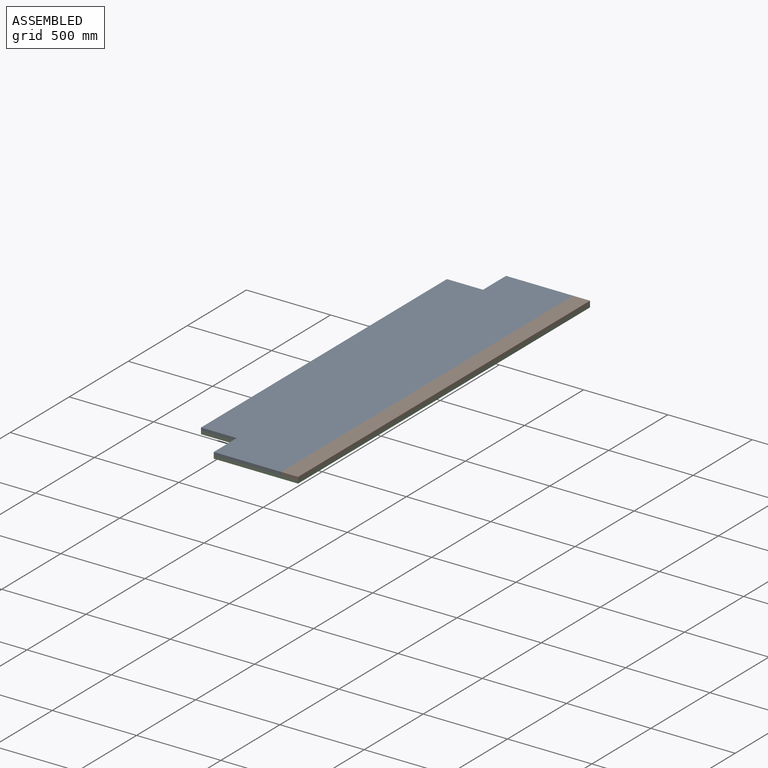
[diagram: assembled view]
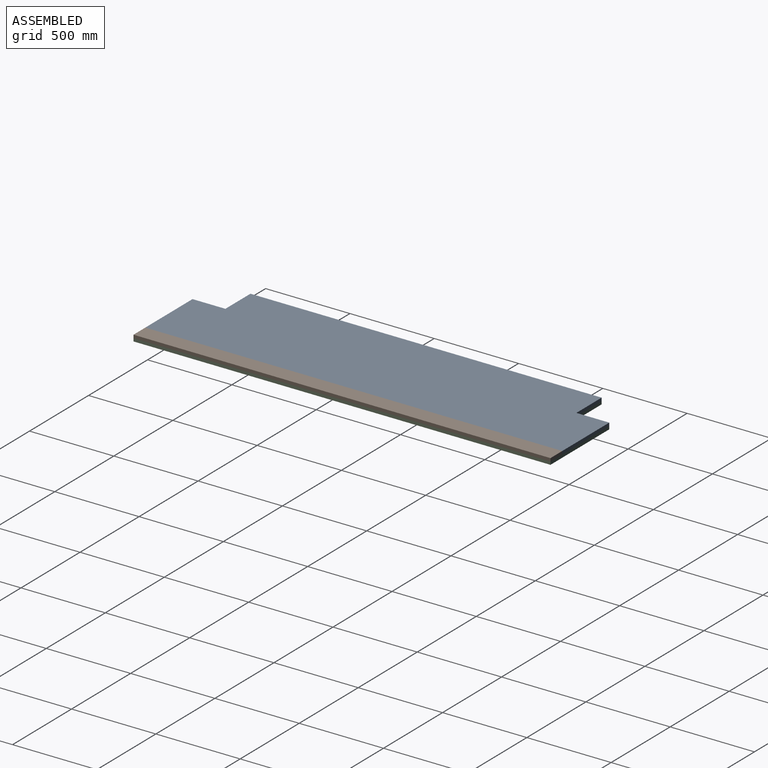
[diagram: assembled view, second angle]
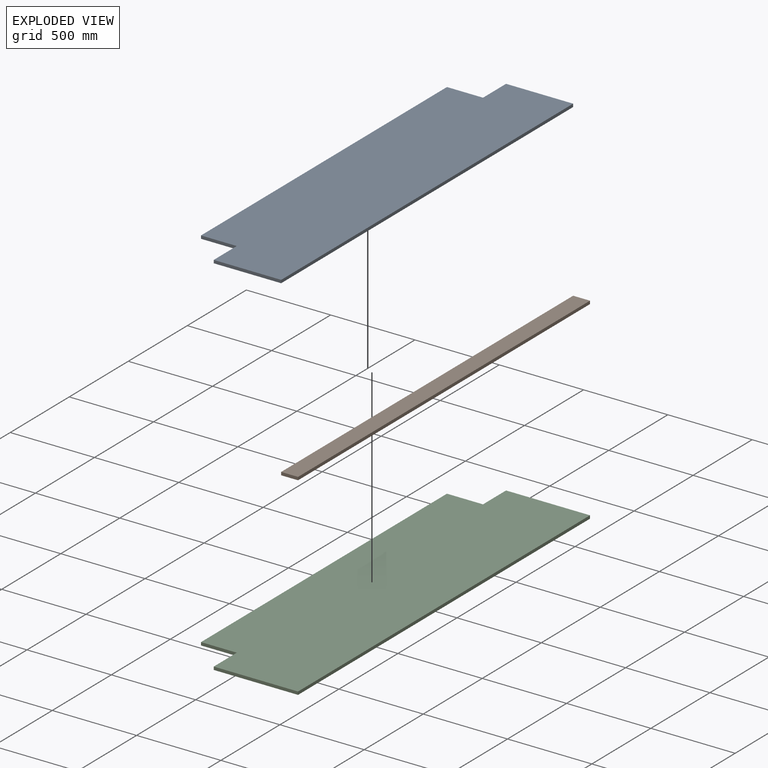
[diagram: exploded view]
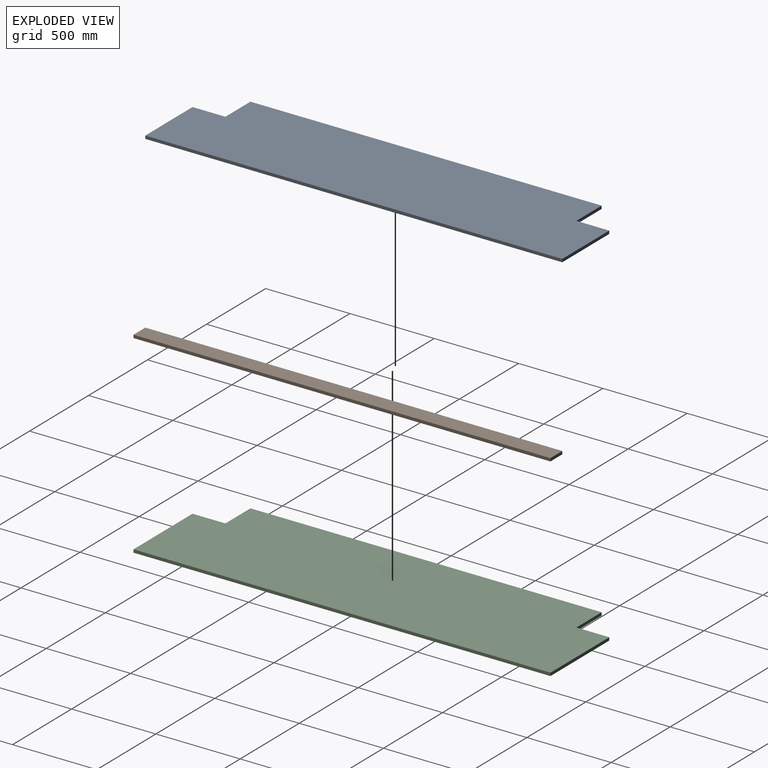
[diagram: exploded view, second angle]
ASSEMBLY  parts=3 mates=2
PART A: 10 faces, bbox 612x2473x18 mm
  f0: plane 2083x18mm, normal (-1,0,0), area 37494mm2, adj f1,f7,f8,f9
  f1: plane 212x18mm, normal (0,-1,0), area 3816mm2, adj f0,f2,f8,f9
  f2: plane 195x18mm, normal (-1,0,0), area 3510mm2, adj f1,f3,f8,f9
  f3: plane 400x18mm, normal (0,-1,0), area 7200mm2, adj f2,f4,f8,f9
  f4: plane 2473x18mm, normal (1,0,0), area 44514mm2, adj f3,f5,f8,f9
  f5: plane 398x18mm, normal (0,1,0), area 7164mm2, adj f4,f6,f8,f9
  f6: plane 195x18mm, normal (-1,0,0), area 3510mm2, adj f5,f7,f8,f9
  f7: plane 214x18mm, normal (0,1,0), area 3852mm2, adj f0,f6,f8,f9
  f8: plane 2473x612mm, normal (0,0,1), area 1430406mm2, adj f0,f1,f2,f3,f4,f5,f6,f7
  f9: plane 2473x612mm, normal (0,0,-1), area 1430406mm2, adj f0,f1,f2,f3,f4,f5,f6,f7
PART B: 6 faces, bbox 100x2473x18 mm
  f0: plane 100x18mm, normal (0,1,0), area 1800mm2, adj f1,f3,f4,f5
  f1: plane 2473x18mm, normal (-1,0,0), area 44514mm2, adj f0,f2,f4,f5
  f2: plane 100x18mm, normal (0,-1,0), area 1800mm2, adj f1,f3,f4,f5
  f3: plane 2473x18mm, normal (1,0,0), area 44514mm2, adj f0,f2,f4,f5
  f4: plane 2473x100mm, normal (0,0,1), area 247300mm2, adj f0,f1,f2,f3
  f5: plane 2473x100mm, normal (0,0,-1), area 247300mm2, adj f0,f1,f2,f3
PART C: 10 faces, bbox 712x2473x18 mm
  f0: plane 2083x18mm, normal (-1,0,0), area 37494mm2, adj f1,f7,f8,f9
  f1: plane 212x18mm, normal (0,-1,0), area 3816mm2, adj f0,f2,f8,f9
  f2: plane 195x18mm, normal (-1,0,0), area 3510mm2, adj f1,f3,f8,f9
  f3: plane 500x18mm, normal (0,-1,0), area 9000mm2, adj f2,f4,f8,f9
  f4: plane 2473x18mm, normal (1,0,0), area 44514mm2, adj f3,f5,f8,f9
  f5: plane 498x18mm, normal (0,1,0), area 8964mm2, adj f4,f6,f8,f9
  f6: plane 195x18mm, normal (-1,0,0), area 3510mm2, adj f5,f7,f8,f9
  f7: plane 214x18mm, normal (0,1,0), area 3852mm2, adj f0,f6,f8,f9
  f8: plane 2473x712mm, normal (0,0,1), area 1677706mm2, adj f0,f1,f2,f3,f4,f5,f6,f7
  f9: plane 2473x712mm, normal (0,0,-1), area 1677706mm2, adj f0,f1,f2,f3,f4,f5,f6,f7
PLACE A at identity
PLACE B t=(-543.67,-7.2,0)mm
PLACE C t=(1277.13,-488.12,-18)mm
MATE fastened B.f5 <-> C.f8  axis (0,0,1) through (1423.23,-1236.5,0)mm
MATE fastened C.f8 <-> A.f9  axis (0,0,1) through (711.23,-1041.5,0)mm
